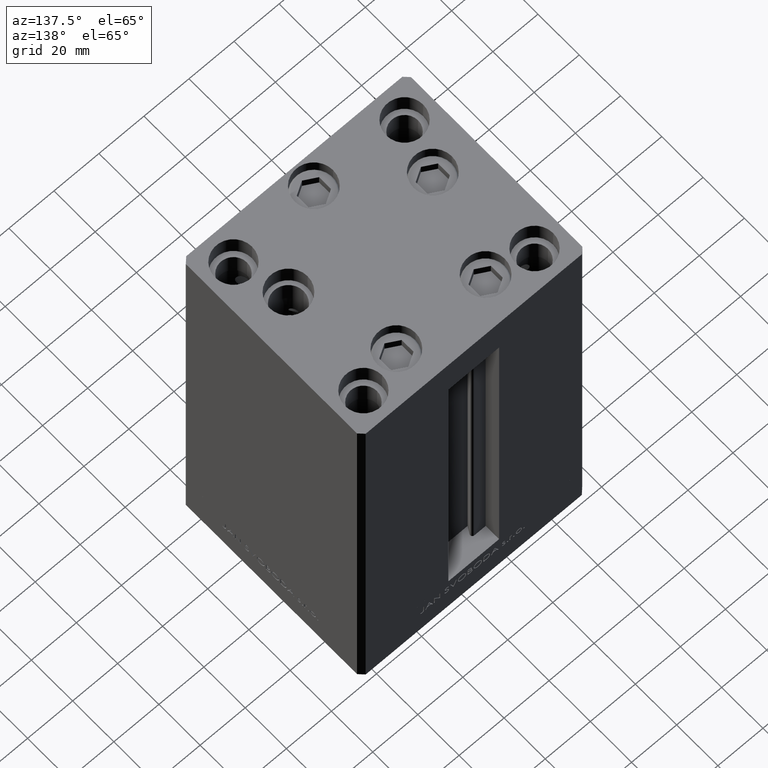
[diagram: clean part render]
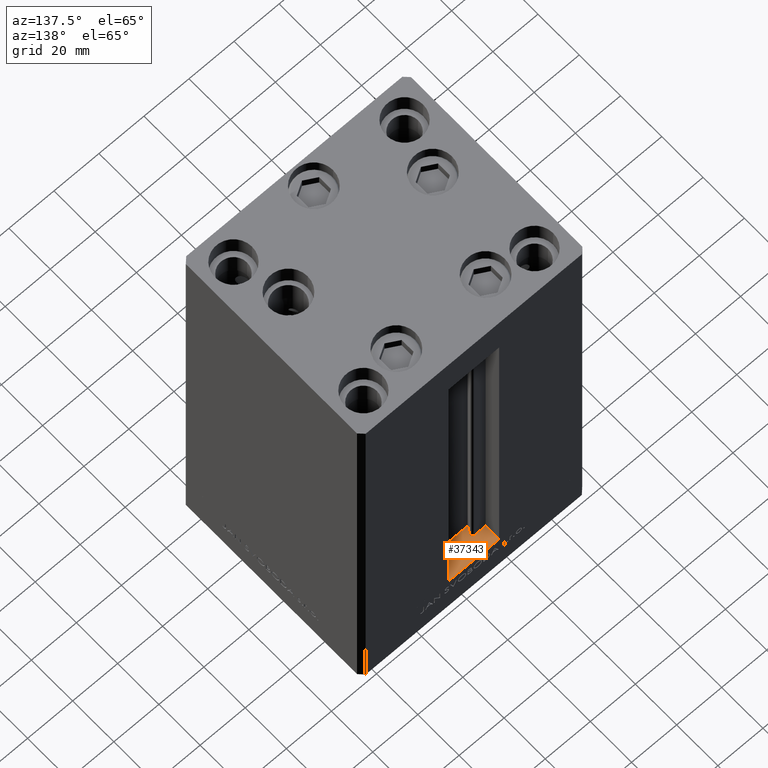
[diagram: same view with one face highlighted and labeled with its STEP entity id]
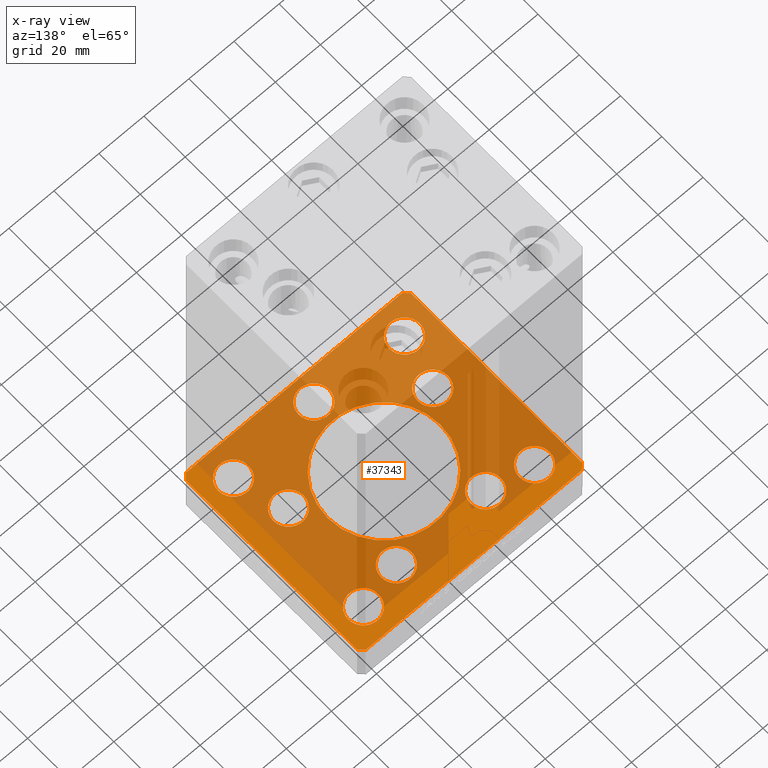
[diagram: x-ray of the same camera — body ghosted, the highlighted face saturated]
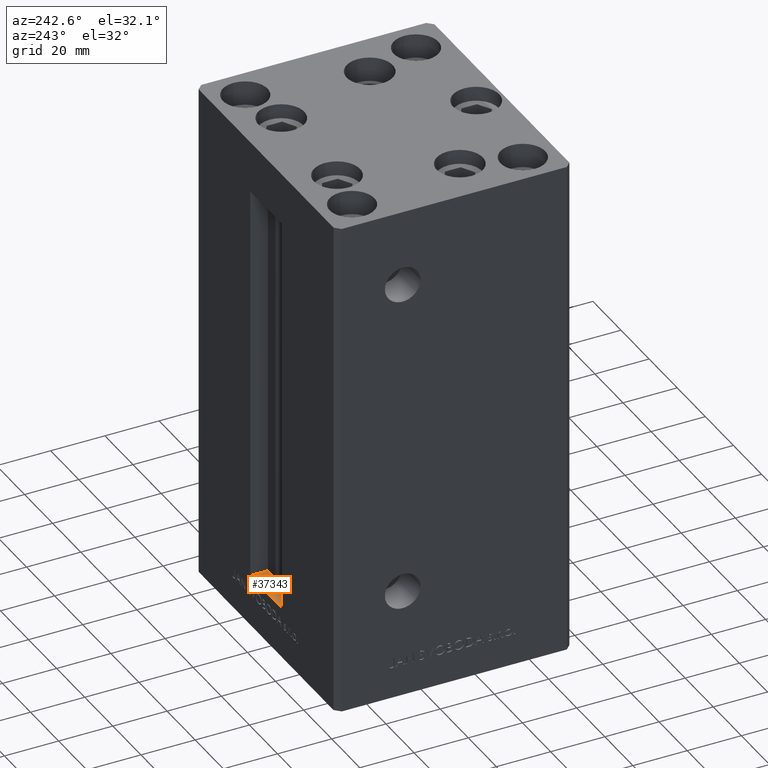
[diagram: same view with one face highlighted and labeled with its STEP entity id]
A machine part, auxiliary view. The second image highlights one B-rep face of the part: STEP entity #37343.
The next image is the same camera in x-ray: the body ghosted, the highlighted face saturated — about 75% of this face is hidden behind the body in this view.
A second angle (auxiliary view) of the same face is appended — the face is thin or edge-on in the first view.
In plain terms, the highlighted planar face has unit normal (0, 0, -1).
Its self-contained STEP definition (entity closure, byte-faithful):
#37 = AXIS2_PLACEMENT_3D ( 'NONE', #22620, #3306, #49260 ) ;
#428 = ORIENTED_EDGE ( 'NONE', *, *, #48752, .T. ) ;
#486 = VERTEX_POINT ( 'NONE', #4976 ) ;
#538 = FACE_BOUND ( 'NONE', #21895, .T. ) ;
#870 = DIRECTION ( 'NONE',  ( 1.000000000000000000, 1.156482317317871331E-15, 0.000000000000000000 ) ) ;
#1063 = CARTESIAN_POINT ( 'NONE',  ( -50.00000000000000000, -41.50000000000004263, -19.00000000000000000 ) ) ;
#1307 = DIRECTION ( 'NONE',  ( -0.000000000000000000, 0.000000000000000000, 1.000000000000000000 ) ) ;
#1650 = CIRCLE ( 'NONE', #40573, 6.749999999999999112 ) ;
#1706 = CARTESIAN_POINT ( 'NONE',  ( 38.00000000000000000, 31.50000000000000000, -19.00000000000000000 ) ) ;
#1714 = EDGE_CURVE ( 'NONE', #45803, #32396, #11434, .T. ) ;
#1846 = CIRCLE ( 'NONE', #46411, 6.749999999999999112 ) ;
#2056 = DIRECTION ( 'NONE',  ( -0.000000000000000000, 0.000000000000000000, 1.000000000000000000 ) ) ;
#2093 = AXIS2_PLACEMENT_3D ( 'NONE', #39149, #43207, #31309 ) ;
#2278 = DIRECTION ( 'NONE',  ( 1.000000000000000000, 0.000000000000000000, 0.000000000000000000 ) ) ;
#2475 = LINE ( 'NONE', #22530, #25286 ) ;
#2688 = EDGE_CURVE ( 'NONE', #23364, #4649, #38221, .T. ) ;
#2949 = EDGE_CURVE ( 'NONE', #27830, #10734, #2475, .T. ) ;
#3306 = DIRECTION ( 'NONE',  ( -0.000000000000000000, 0.000000000000000000, 1.000000000000000000 ) ) ;
#3533 = ORIENTED_EDGE ( 'NONE', *, *, #2949, .F. ) ;
#3680 = ORIENTED_EDGE ( 'NONE', *, *, #2688, .T. ) ;
#4649 = VERTEX_POINT ( 'NONE', #36219 ) ;
#4668 = VERTEX_POINT ( 'NONE', #32173 ) ;
#4769 = VECTOR ( 'NONE', #27155, 1000.000000000000000 ) ;
#4976 = CARTESIAN_POINT ( 'NONE',  ( -25.00000000000000000, 3.061616997868383043E-15, -19.00000000000000000 ) ) ;
#5078 = DIRECTION ( 'NONE',  ( 0.000000000000000000, -0.000000000000000000, -1.000000000000000000 ) ) ;
#5124 = CARTESIAN_POINT ( 'NONE',  ( -19.82068048781374969, 27.62499999999998934, -19.00000000000000000 ) ) ;
#5418 = CARTESIAN_POINT ( 'NONE',  ( 25.00000000000000000, 0.000000000000000000, -19.00000000000000000 ) ) ;
#5589 = ORIENTED_EDGE ( 'NONE', *, *, #11845, .F. ) ;
#6254 = LINE ( 'NONE', #28865, #41631 ) ;
#6430 = EDGE_CURVE ( 'NONE', #6578, #18016, #1846, .T. ) ;
#6578 = VERTEX_POINT ( 'NONE', #20977 ) ;
#6592 = DIRECTION ( 'NONE',  ( -0.000000000000000000, 0.000000000000000000, 1.000000000000000000 ) ) ;
#6953 = VERTEX_POINT ( 'NONE', #13291 ) ;
#7135 = ORIENTED_EDGE ( 'NONE', *, *, #22210, .T. ) ;
#7862 = DIRECTION ( 'NONE',  ( 0.000000000000000000, -0.000000000000000000, -1.000000000000000000 ) ) ;
#7926 = FACE_BOUND ( 'NONE', #14432, .T. ) ;
#7978 = EDGE_CURVE ( 'NONE', #34967, #486, #18963, .T. ) ;
#8042 = EDGE_LOOP ( 'NONE', ( #16239, #20812 ) ) ;
#8395 = ORIENTED_EDGE ( 'NONE', *, *, #35346, .T. ) ;
#8631 = DIRECTION ( 'NONE',  ( -0.000000000000000000, 0.000000000000000000, 1.000000000000000000 ) ) ;
#8636 = CARTESIAN_POINT ( 'NONE',  ( 44.75000000000000711, -31.50000000000000711, -19.00000000000000000 ) ) ;
#8683 = FACE_BOUND ( 'NONE', #32603, .T. ) ;
#8799 = AXIS2_PLACEMENT_3D ( 'NONE', #36559, #47979, #2278 ) ;
#8914 = ORIENTED_EDGE ( 'NONE', *, *, #47440, .F. ) ;
#8999 = CARTESIAN_POINT ( 'NONE',  ( -44.75000000000000000, 31.50000000000000000, -19.00000000000000000 ) ) ;
#9026 = CARTESIAN_POINT ( 'NONE',  ( -48.00000000000000711, -43.50000000000002842, -19.00000000000000000 ) ) ;
#9076 = EDGE_CURVE ( 'NONE', #38253, #27830, #49698, .T. ) ;
#9235 = DIRECTION ( 'NONE',  ( -0.000000000000000000, 0.000000000000000000, 1.000000000000000000 ) ) ;
#9644 = CIRCLE ( 'NONE', #38004, 6.749999999999999112 ) ;
#9651 = CARTESIAN_POINT ( 'NONE',  ( -48.00000000000000000, 43.49999999999997158, -19.00000000000000000 ) ) ;
#9830 = AXIS2_PLACEMENT_3D ( 'NONE', #36128, #44491, #23965 ) ;
#10137 = AXIS2_PLACEMENT_3D ( 'NONE', #13744, #21119, #17556 ) ;
#10181 = EDGE_LOOP ( 'NONE', ( #20547, #40929 ) ) ;
#10418 = ORIENTED_EDGE ( 'NONE', *, *, #29291, .T. ) ;
#10667 = CARTESIAN_POINT ( 'NONE',  ( 38.00000000000000711, -31.50000000000000711, -19.00000000000000000 ) ) ;
#10713 = DIRECTION ( 'NONE',  ( -0.000000000000000000, 0.000000000000000000, 1.000000000000000000 ) ) ;
#10734 = VERTEX_POINT ( 'NONE', #9651 ) ;
#11434 = CIRCLE ( 'NONE', #45466, 6.749999999999999112 ) ;
#11437 = DIRECTION ( 'NONE',  ( 1.000000000000000000, 0.000000000000000000, 0.000000000000000000 ) ) ;
#11449 = CARTESIAN_POINT ( 'NONE',  ( 26.57068048781374969, 27.62499999999998934, -19.00000000000000000 ) ) ;
#11845 = EDGE_CURVE ( 'NONE', #42507, #38253, #16410, .T. ) ;
#11913 = CARTESIAN_POINT ( 'NONE',  ( -38.80550741379015989, -11.33333333333332860, -19.00000000000000000 ) ) ;
#12168 = CARTESIAN_POINT ( 'NONE',  ( 50.00000000000000000, 41.50000000000000711, -19.00000000000000000 ) ) ;
#12270 = DIRECTION ( 'NONE',  ( 0.000000000000000000, -0.000000000000000000, -1.000000000000000000 ) ) ;
#12307 = CARTESIAN_POINT ( 'NONE',  ( -48.00000000000000711, -43.50000000000002842, -19.00000000000000000 ) ) ;
#12329 = DIRECTION ( 'NONE',  ( 1.000000000000000000, 0.000000000000000000, 0.000000000000000000 ) ) ;
#12334 = CARTESIAN_POINT ( 'NONE',  ( 50.00000000000000000, -41.49999999999992895, -19.00000000000000000 ) ) ;
#12345 = CARTESIAN_POINT ( 'NONE',  ( 48.00000000000000711, -43.49999999999992184, -19.00000000000000000 ) ) ;
#12356 = EDGE_LOOP ( 'NONE', ( #3680, #21030 ) ) ;
#12922 = EDGE_CURVE ( 'NONE', #49622, #15694, #6254, .T. ) ;
#12946 = DIRECTION ( 'NONE',  ( 1.000000000000000000, 0.000000000000000000, 0.000000000000000000 ) ) ;
#13291 = CARTESIAN_POINT ( 'NONE',  ( -13.07068048781375325, 27.62499999999998934, -19.00000000000000000 ) ) ;
#13401 = EDGE_CURVE ( 'NONE', #19992, #24339, #47275, .T. ) ;
#13744 = CARTESIAN_POINT ( 'NONE',  ( 0.000000000000000000, -34.00000000000000000, -19.00000000000000000 ) ) ;
#13894 = CIRCLE ( 'NONE', #31590, 6.749999999999999112 ) ;
#14377 = CARTESIAN_POINT ( 'NONE',  ( 48.00000000000000711, -43.49999999999992184, -19.00000000000000000 ) ) ;
#14432 = EDGE_LOOP ( 'NONE', ( #49877, #28914 ) ) ;
#14616 = AXIS2_PLACEMENT_3D ( 'NONE', #1706, #22032, #25335 ) ;
#14825 = ORIENTED_EDGE ( 'NONE', *, *, #47958, .F. ) ;
#15277 = CARTESIAN_POINT ( 'NONE',  ( 44.75000000000000000, 31.50000000000000000, -19.00000000000000000 ) ) ;
#15407 = CIRCLE ( 'NONE', #9830, 6.749999999999999112 ) ;
#15496 = LINE ( 'NONE', #45242, #4769 ) ;
#15672 = VECTOR ( 'NONE', #19713, 1000.000000000000000 ) ;
#15694 = VERTEX_POINT ( 'NONE', #9026 ) ;
#16039 = CARTESIAN_POINT ( 'NONE',  ( -6.749999999999999112, -34.00000000000000000, -19.00000000000000000 ) ) ;
#16089 = CARTESIAN_POINT ( 'NONE',  ( 0.000000000000000000, 0.000000000000000000, -19.00000000000000000 ) ) ;
#16239 = ORIENTED_EDGE ( 'NONE', *, *, #36974, .T. ) ;
#16339 = CARTESIAN_POINT ( 'NONE',  ( 38.80550741379015989, -11.33333333333332860, -19.00000000000000000 ) ) ;
#16410 = LINE ( 'NONE', #12334, #15672 ) ;
#16930 = EDGE_CURVE ( 'NONE', #27969, #30418, #36893, .T. ) ;
#17128 = CARTESIAN_POINT ( 'NONE',  ( -38.00000000000000000, 31.50000000000000000, -19.00000000000000000 ) ) ;
#17554 = ORIENTED_EDGE ( 'NONE', *, *, #46579, .F. ) ;
#17556 = DIRECTION ( 'NONE',  ( 1.000000000000000000, 0.000000000000000000, 0.000000000000000000 ) ) ;
#17779 = CARTESIAN_POINT ( 'NONE',  ( -44.75000000000000711, -31.50000000000000711, -19.00000000000000000 ) ) ;
#18016 = VERTEX_POINT ( 'NONE', #17779 ) ;
#18585 = DIRECTION ( 'NONE',  ( 1.000000000000000000, 0.000000000000000000, 0.000000000000000000 ) ) ;
#18702 = AXIS2_PLACEMENT_3D ( 'NONE', #25189, #2056, #41152 ) ;
#18963 = CIRCLE ( 'NONE', #47309, 25.00000000000000000 ) ;
#19359 = DIRECTION ( 'NONE',  ( -0.000000000000000000, 0.000000000000000000, 1.000000000000000000 ) ) ;
#19410 = EDGE_LOOP ( 'NONE', ( #37991, #23107 ) ) ;
#19464 = AXIS2_PLACEMENT_3D ( 'NONE', #46187, #7862, #11437 ) ;
#19558 = ORIENTED_EDGE ( 'NONE', *, *, #6430, .F. ) ;
#19643 = EDGE_CURVE ( 'NONE', #486, #34967, #34566, .T. ) ;
#19713 = DIRECTION ( 'NONE',  ( 0.000000000000000000, 1.000000000000000000, 0.000000000000000000 ) ) ;
#19992 = VERTEX_POINT ( 'NONE', #36813 ) ;
#20224 = CARTESIAN_POINT ( 'NONE',  ( 13.07068048781375147, 27.62499999999998934, -19.00000000000000000 ) ) ;
#20259 = CARTESIAN_POINT ( 'NONE',  ( -26.57068048781375325, 27.62499999999998934, -19.00000000000000000 ) ) ;
#20499 = CIRCLE ( 'NONE', #21343, 6.749999999999999112 ) ;
#20547 = ORIENTED_EDGE ( 'NONE', *, *, #1714, .F. ) ;
#20812 = ORIENTED_EDGE ( 'NONE', *, *, #35024, .T. ) ;
#20844 = DIRECTION ( 'NONE',  ( 1.000000000000000000, 0.000000000000000000, 0.000000000000000000 ) ) ;
#20934 = CARTESIAN_POINT ( 'NONE',  ( -50.00000000000000711, 41.49999999999999289, -19.00000000000000000 ) ) ;
#20977 = CARTESIAN_POINT ( 'NONE',  ( -31.25000000000000711, -31.50000000000000711, -19.00000000000000000 ) ) ;
#20982 = ORIENTED_EDGE ( 'NONE', *, *, #45767, .T. ) ;
#21030 = ORIENTED_EDGE ( 'NONE', *, *, #39418, .T. ) ;
#21119 = DIRECTION ( 'NONE',  ( -0.000000000000000000, 0.000000000000000000, 1.000000000000000000 ) ) ;
#21266 = DIRECTION ( 'NONE',  ( 0.7071067811865487940, -0.7071067811865463515, 0.000000000000000000 ) ) ;
#21343 = AXIS2_PLACEMENT_3D ( 'NONE', #42068, #34216, #49195 ) ;
#21392 = FACE_BOUND ( 'NONE', #8042, .T. ) ;
#21638 = FACE_OUTER_BOUND ( 'NONE', #29341, .T. ) ;
#21895 = EDGE_LOOP ( 'NONE', ( #10418, #29250 ) ) ;
#22032 = DIRECTION ( 'NONE',  ( 0.000000000000000000, -0.000000000000000000, -1.000000000000000000 ) ) ;
#22146 = CARTESIAN_POINT ( 'NONE',  ( -19.82068048781374969, 27.62499999999998934, -19.00000000000000000 ) ) ;
#22210 = EDGE_CURVE ( 'NONE', #30418, #27969, #24799, .T. ) ;
#22391 = ORIENTED_EDGE ( 'NONE', *, *, #12922, .F. ) ;
#22530 = CARTESIAN_POINT ( 'NONE',  ( 47.99999999999999289, 43.50000000000000000, -19.00000000000000000 ) ) ;
#22620 = CARTESIAN_POINT ( 'NONE',  ( 19.82068048781374969, 27.62499999999998934, -19.00000000000000000 ) ) ;
#23061 = VECTOR ( 'NONE', #45876, 999.9999999999998863 ) ;
#23107 = ORIENTED_EDGE ( 'NONE', *, *, #19643, .F. ) ;
#23364 = VERTEX_POINT ( 'NONE', #8636 ) ;
#23429 = FACE_BOUND ( 'NONE', #47555, .T. ) ;
#23965 = DIRECTION ( 'NONE',  ( 1.000000000000000000, 0.000000000000000000, 0.000000000000000000 ) ) ;
#24339 = VERTEX_POINT ( 'NONE', #16339 ) ;
#24716 = CARTESIAN_POINT ( 'NONE',  ( -48.00000000000000000, 43.49999999999997158, -19.00000000000000000 ) ) ;
#24799 = CIRCLE ( 'NONE', #2093, 6.749999999999999112 ) ;
#24943 = LINE ( 'NONE', #12307, #28893 ) ;
#24987 = VECTOR ( 'NONE', #40174, 1000.000000000000000 ) ;
#25167 = CIRCLE ( 'NONE', #14616, 6.749999999999999112 ) ;
#25189 = CARTESIAN_POINT ( 'NONE',  ( 0.000000000000000000, 0.000000000000000000, -19.00000000000000000 ) ) ;
#25286 = VECTOR ( 'NONE', #38247, 1000.000000000000000 ) ;
#25335 = DIRECTION ( 'NONE',  ( 1.000000000000000000, 0.000000000000000000, 0.000000000000000000 ) ) ;
#25573 = DIRECTION ( 'NONE',  ( -0.000000000000000000, 0.000000000000000000, 1.000000000000000000 ) ) ;
#25820 = CARTESIAN_POINT ( 'NONE',  ( -32.05550741379015989, -11.33333333333332860, -19.00000000000000000 ) ) ;
#25856 = VECTOR ( 'NONE', #27832, 1000.000000000000114 ) ;
#26119 = DIRECTION ( 'NONE',  ( 0.000000000000000000, -0.000000000000000000, -1.000000000000000000 ) ) ;
#26463 = AXIS2_PLACEMENT_3D ( 'NONE', #16089, #12270, #27759 ) ;
#26619 = VERTEX_POINT ( 'NONE', #8999 ) ;
#27155 = DIRECTION ( 'NONE',  ( 8.360113137237620037E-17, -1.000000000000000000, 0.000000000000000000 ) ) ;
#27355 = AXIS2_PLACEMENT_3D ( 'NONE', #22146, #10713, #18585 ) ;
#27532 = CARTESIAN_POINT ( 'NONE',  ( 47.99999999999999289, 43.50000000000000000, -19.00000000000000000 ) ) ;
#27759 = DIRECTION ( 'NONE',  ( 1.000000000000000000, 0.000000000000000000, 0.000000000000000000 ) ) ;
#27830 = VERTEX_POINT ( 'NONE', #27532 ) ;
#27832 = DIRECTION ( 'NONE',  ( 0.7071067811865474617, 0.7071067811865474617, 0.000000000000000000 ) ) ;
#27969 = VERTEX_POINT ( 'NONE', #35032 ) ;
#27977 = FACE_BOUND ( 'NONE', #40569, .T. ) ;
#28527 = LINE ( 'NONE', #24716, #24987 ) ;
#28865 = CARTESIAN_POINT ( 'NONE',  ( -50.00000000000000000, -41.50000000000004263, -19.00000000000000000 ) ) ;
#28893 = VECTOR ( 'NONE', #870, 1000.000000000000000 ) ;
#28914 = ORIENTED_EDGE ( 'NONE', *, *, #34976, .T. ) ;
#28949 = CARTESIAN_POINT ( 'NONE',  ( 38.00000000000000000, 31.50000000000000000, -19.00000000000000000 ) ) ;
#28993 = PLANE ( 'NONE',  #18702 ) ;
#29005 = EDGE_LOOP ( 'NONE', ( #46671, #7135 ) ) ;
#29250 = ORIENTED_EDGE ( 'NONE', *, *, #37443, .T. ) ;
#29291 = EDGE_CURVE ( 'NONE', #48908, #29961, #49308, .T. ) ;
#29341 = EDGE_LOOP ( 'NONE', ( #22391, #14825, #17554, #3533, #40218, #5589, #8914, #32605 ) ) ;
#29880 = DIRECTION ( 'NONE',  ( 1.000000000000000000, 0.000000000000000000, 0.000000000000000000 ) ) ;
#29961 = VERTEX_POINT ( 'NONE', #20224 ) ;
#29985 = AXIS2_PLACEMENT_3D ( 'NONE', #25820, #25573, #29880 ) ;
#30418 = VERTEX_POINT ( 'NONE', #16039 ) ;
#30429 = CARTESIAN_POINT ( 'NONE',  ( 50.00000000000000000, 41.50000000000000711, -19.00000000000000000 ) ) ;
#31309 = DIRECTION ( 'NONE',  ( 1.000000000000000000, 0.000000000000000000, 0.000000000000000000 ) ) ;
#31590 = AXIS2_PLACEMENT_3D ( 'NONE', #41927, #19359, #38129 ) ;
#31798 = DIRECTION ( 'NONE',  ( 1.000000000000000000, 0.000000000000000000, 0.000000000000000000 ) ) ;
#32173 = CARTESIAN_POINT ( 'NONE',  ( -25.30550741379015989, -11.33333333333332860, -19.00000000000000000 ) ) ;
#32396 = VERTEX_POINT ( 'NONE', #42707 ) ;
#32603 = EDGE_LOOP ( 'NONE', ( #19558, #35350 ) ) ;
#32605 = ORIENTED_EDGE ( 'NONE', *, *, #42258, .F. ) ;
#33242 = AXIS2_PLACEMENT_3D ( 'NONE', #17128, #9235, #44240 ) ;
#33311 = CIRCLE ( 'NONE', #37, 6.749999999999999112 ) ;
#33599 = ORIENTED_EDGE ( 'NONE', *, *, #13401, .T. ) ;
#34216 = DIRECTION ( 'NONE',  ( -0.000000000000000000, 0.000000000000000000, 1.000000000000000000 ) ) ;
#34566 = CIRCLE ( 'NONE', #26463, 25.00000000000000000 ) ;
#34695 = VERTEX_POINT ( 'NONE', #39423 ) ;
#34967 = VERTEX_POINT ( 'NONE', #5418 ) ;
#34976 = EDGE_CURVE ( 'NONE', #43837, #4668, #15407, .T. ) ;
#35024 = EDGE_CURVE ( 'NONE', #26619, #34695, #35755, .T. ) ;
#35032 = CARTESIAN_POINT ( 'NONE',  ( 6.749999999999999112, -34.00000000000000000, -19.00000000000000000 ) ) ;
#35033 = VERTEX_POINT ( 'NONE', #20934 ) ;
#35326 = FACE_BOUND ( 'NONE', #29005, .T. ) ;
#35346 = EDGE_CURVE ( 'NONE', #24339, #19992, #13894, .T. ) ;
#35350 = ORIENTED_EDGE ( 'NONE', *, *, #36406, .F. ) ;
#35755 = CIRCLE ( 'NONE', #33242, 6.749999999999999112 ) ;
#35787 = CARTESIAN_POINT ( 'NONE',  ( 50.00000000000000000, -41.49999999999992895, -19.00000000000000000 ) ) ;
#36128 = CARTESIAN_POINT ( 'NONE',  ( -32.05550741379015989, -11.33333333333332860, -19.00000000000000000 ) ) ;
#36146 = DIRECTION ( 'NONE',  ( -0.000000000000000000, 0.000000000000000000, 1.000000000000000000 ) ) ;
#36219 = CARTESIAN_POINT ( 'NONE',  ( 31.25000000000000711, -31.50000000000000711, -19.00000000000000000 ) ) ;
#36406 = EDGE_CURVE ( 'NONE', #18016, #6578, #44587, .T. ) ;
#36559 = CARTESIAN_POINT ( 'NONE',  ( 19.82068048781374969, 27.62499999999998934, -19.00000000000000000 ) ) ;
#36813 = CARTESIAN_POINT ( 'NONE',  ( 25.30550741379015989, -11.33333333333332860, -19.00000000000000000 ) ) ;
#36893 = CIRCLE ( 'NONE', #10137, 6.749999999999999112 ) ;
#36974 = EDGE_CURVE ( 'NONE', #34695, #26619, #1650, .T. ) ;
#37244 = CIRCLE ( 'NONE', #29985, 6.749999999999999112 ) ;
#37275 = EDGE_CURVE ( 'NONE', #32396, #45803, #25167, .T. ) ;
#37343 = ADVANCED_FACE ( 'NONE', ( #42694, #7926, #35326, #23429, #538, #27977, #43439, #8683, #21638, #21392, #40396 ), #28993, .F. ) ;
#37399 = AXIS2_PLACEMENT_3D ( 'NONE', #10667, #6592, #41369 ) ;
#37443 = EDGE_CURVE ( 'NONE', #29961, #48908, #33311, .T. ) ;
#37991 = ORIENTED_EDGE ( 'NONE', *, *, #7978, .F. ) ;
#38004 = AXIS2_PLACEMENT_3D ( 'NONE', #5124, #1307, #31798 ) ;
#38129 = DIRECTION ( 'NONE',  ( 1.000000000000000000, 0.000000000000000000, 0.000000000000000000 ) ) ;
#38221 = CIRCLE ( 'NONE', #37399, 6.749999999999999112 ) ;
#38247 = DIRECTION ( 'NONE',  ( -1.000000000000000000, -2.891205793294678326E-16, 0.000000000000000000 ) ) ;
#38253 = VERTEX_POINT ( 'NONE', #12168 ) ;
#38980 = DIRECTION ( 'NONE',  ( 0.000000000000000000, -0.000000000000000000, -1.000000000000000000 ) ) ;
#39149 = CARTESIAN_POINT ( 'NONE',  ( 0.000000000000000000, -34.00000000000000000, -19.00000000000000000 ) ) ;
#39418 = EDGE_CURVE ( 'NONE', #4649, #23364, #20499, .T. ) ;
#39423 = CARTESIAN_POINT ( 'NONE',  ( -31.25000000000000000, 31.50000000000000000, -19.00000000000000000 ) ) ;
#40174 = DIRECTION ( 'NONE',  ( -0.7071067811865536790, -0.7071067811865414665, 0.000000000000000000 ) ) ;
#40218 = ORIENTED_EDGE ( 'NONE', *, *, #9076, .F. ) ;
#40396 = FACE_BOUND ( 'NONE', #12356, .T. ) ;
#40569 = EDGE_LOOP ( 'NONE', ( #20982, #428 ) ) ;
#40573 = AXIS2_PLACEMENT_3D ( 'NONE', #47564, #36146, #43756 ) ;
#40929 = ORIENTED_EDGE ( 'NONE', *, *, #37275, .F. ) ;
#41152 = DIRECTION ( 'NONE',  ( 1.000000000000000000, 0.000000000000000000, 0.000000000000000000 ) ) ;
#41369 = DIRECTION ( 'NONE',  ( 1.000000000000000000, 0.000000000000000000, 0.000000000000000000 ) ) ;
#41577 = DIRECTION ( 'NONE',  ( 1.000000000000000000, 0.000000000000000000, 0.000000000000000000 ) ) ;
#41631 = VECTOR ( 'NONE', #21266, 1000.000000000000000 ) ;
#41927 = CARTESIAN_POINT ( 'NONE',  ( 32.05550741379015989, -11.33333333333332860, -19.00000000000000000 ) ) ;
#41992 = VERTEX_POINT ( 'NONE', #20259 ) ;
#42068 = CARTESIAN_POINT ( 'NONE',  ( 38.00000000000000711, -31.50000000000000711, -19.00000000000000000 ) ) ;
#42258 = EDGE_CURVE ( 'NONE', #15694, #45119, #24943, .T. ) ;
#42507 = VERTEX_POINT ( 'NONE', #35787 ) ;
#42694 = FACE_BOUND ( 'NONE', #19410, .T. ) ;
#42707 = CARTESIAN_POINT ( 'NONE',  ( 31.25000000000000000, 31.50000000000000000, -19.00000000000000000 ) ) ;
#42794 = LINE ( 'NONE', #12345, #25856 ) ;
#43207 = DIRECTION ( 'NONE',  ( -0.000000000000000000, 0.000000000000000000, 1.000000000000000000 ) ) ;
#43384 = CARTESIAN_POINT ( 'NONE',  ( 32.05550741379015989, -11.33333333333332860, -19.00000000000000000 ) ) ;
#43439 = FACE_BOUND ( 'NONE', #10181, .T. ) ;
#43756 = DIRECTION ( 'NONE',  ( 1.000000000000000000, 0.000000000000000000, 0.000000000000000000 ) ) ;
#43837 = VERTEX_POINT ( 'NONE', #11913 ) ;
#44240 = DIRECTION ( 'NONE',  ( 1.000000000000000000, 0.000000000000000000, 0.000000000000000000 ) ) ;
#44491 = DIRECTION ( 'NONE',  ( -0.000000000000000000, 0.000000000000000000, 1.000000000000000000 ) ) ;
#44587 = CIRCLE ( 'NONE', #19464, 6.749999999999999112 ) ;
#45119 = VERTEX_POINT ( 'NONE', #14377 ) ;
#45242 = CARTESIAN_POINT ( 'NONE',  ( -50.00000000000000711, 41.49999999999999289, -19.00000000000000000 ) ) ;
#45466 = AXIS2_PLACEMENT_3D ( 'NONE', #28949, #5078, #20844 ) ;
#45626 = CARTESIAN_POINT ( 'NONE',  ( 0.000000000000000000, 0.000000000000000000, -19.00000000000000000 ) ) ;
#45767 = EDGE_CURVE ( 'NONE', #6953, #41992, #49270, .T. ) ;
#45803 = VERTEX_POINT ( 'NONE', #15277 ) ;
#45876 = DIRECTION ( 'NONE',  ( -0.7071067811865512365, 0.7071067811865439090, 0.000000000000000000 ) ) ;
#46187 = CARTESIAN_POINT ( 'NONE',  ( -38.00000000000000711, -31.50000000000000711, -19.00000000000000000 ) ) ;
#46411 = AXIS2_PLACEMENT_3D ( 'NONE', #46836, #38980, #12329 ) ;
#46579 = EDGE_CURVE ( 'NONE', #10734, #35033, #28527, .T. ) ;
#46671 = ORIENTED_EDGE ( 'NONE', *, *, #16930, .T. ) ;
#46836 = CARTESIAN_POINT ( 'NONE',  ( -38.00000000000000711, -31.50000000000000711, -19.00000000000000000 ) ) ;
#47275 = CIRCLE ( 'NONE', #48123, 6.749999999999999112 ) ;
#47309 = AXIS2_PLACEMENT_3D ( 'NONE', #45626, #26119, #41577 ) ;
#47440 = EDGE_CURVE ( 'NONE', #45119, #42507, #42794, .T. ) ;
#47555 = EDGE_LOOP ( 'NONE', ( #8395, #33599 ) ) ;
#47564 = CARTESIAN_POINT ( 'NONE',  ( -38.00000000000000000, 31.50000000000000000, -19.00000000000000000 ) ) ;
#47958 = EDGE_CURVE ( 'NONE', #35033, #49622, #15496, .T. ) ;
#47979 = DIRECTION ( 'NONE',  ( -0.000000000000000000, 0.000000000000000000, 1.000000000000000000 ) ) ;
#48123 = AXIS2_PLACEMENT_3D ( 'NONE', #43384, #8631, #12946 ) ;
#48752 = EDGE_CURVE ( 'NONE', #41992, #6953, #9644, .T. ) ;
#48908 = VERTEX_POINT ( 'NONE', #11449 ) ;
#49121 = EDGE_CURVE ( 'NONE', #4668, #43837, #37244, .T. ) ;
#49195 = DIRECTION ( 'NONE',  ( 1.000000000000000000, 0.000000000000000000, 0.000000000000000000 ) ) ;
#49260 = DIRECTION ( 'NONE',  ( 1.000000000000000000, 0.000000000000000000, 0.000000000000000000 ) ) ;
#49270 = CIRCLE ( 'NONE', #27355, 6.749999999999999112 ) ;
#49308 = CIRCLE ( 'NONE', #8799, 6.749999999999999112 ) ;
#49622 = VERTEX_POINT ( 'NONE', #1063 ) ;
#49698 = LINE ( 'NONE', #30429, #23061 ) ;
#49877 = ORIENTED_EDGE ( 'NONE', *, *, #49121, .T. ) ;